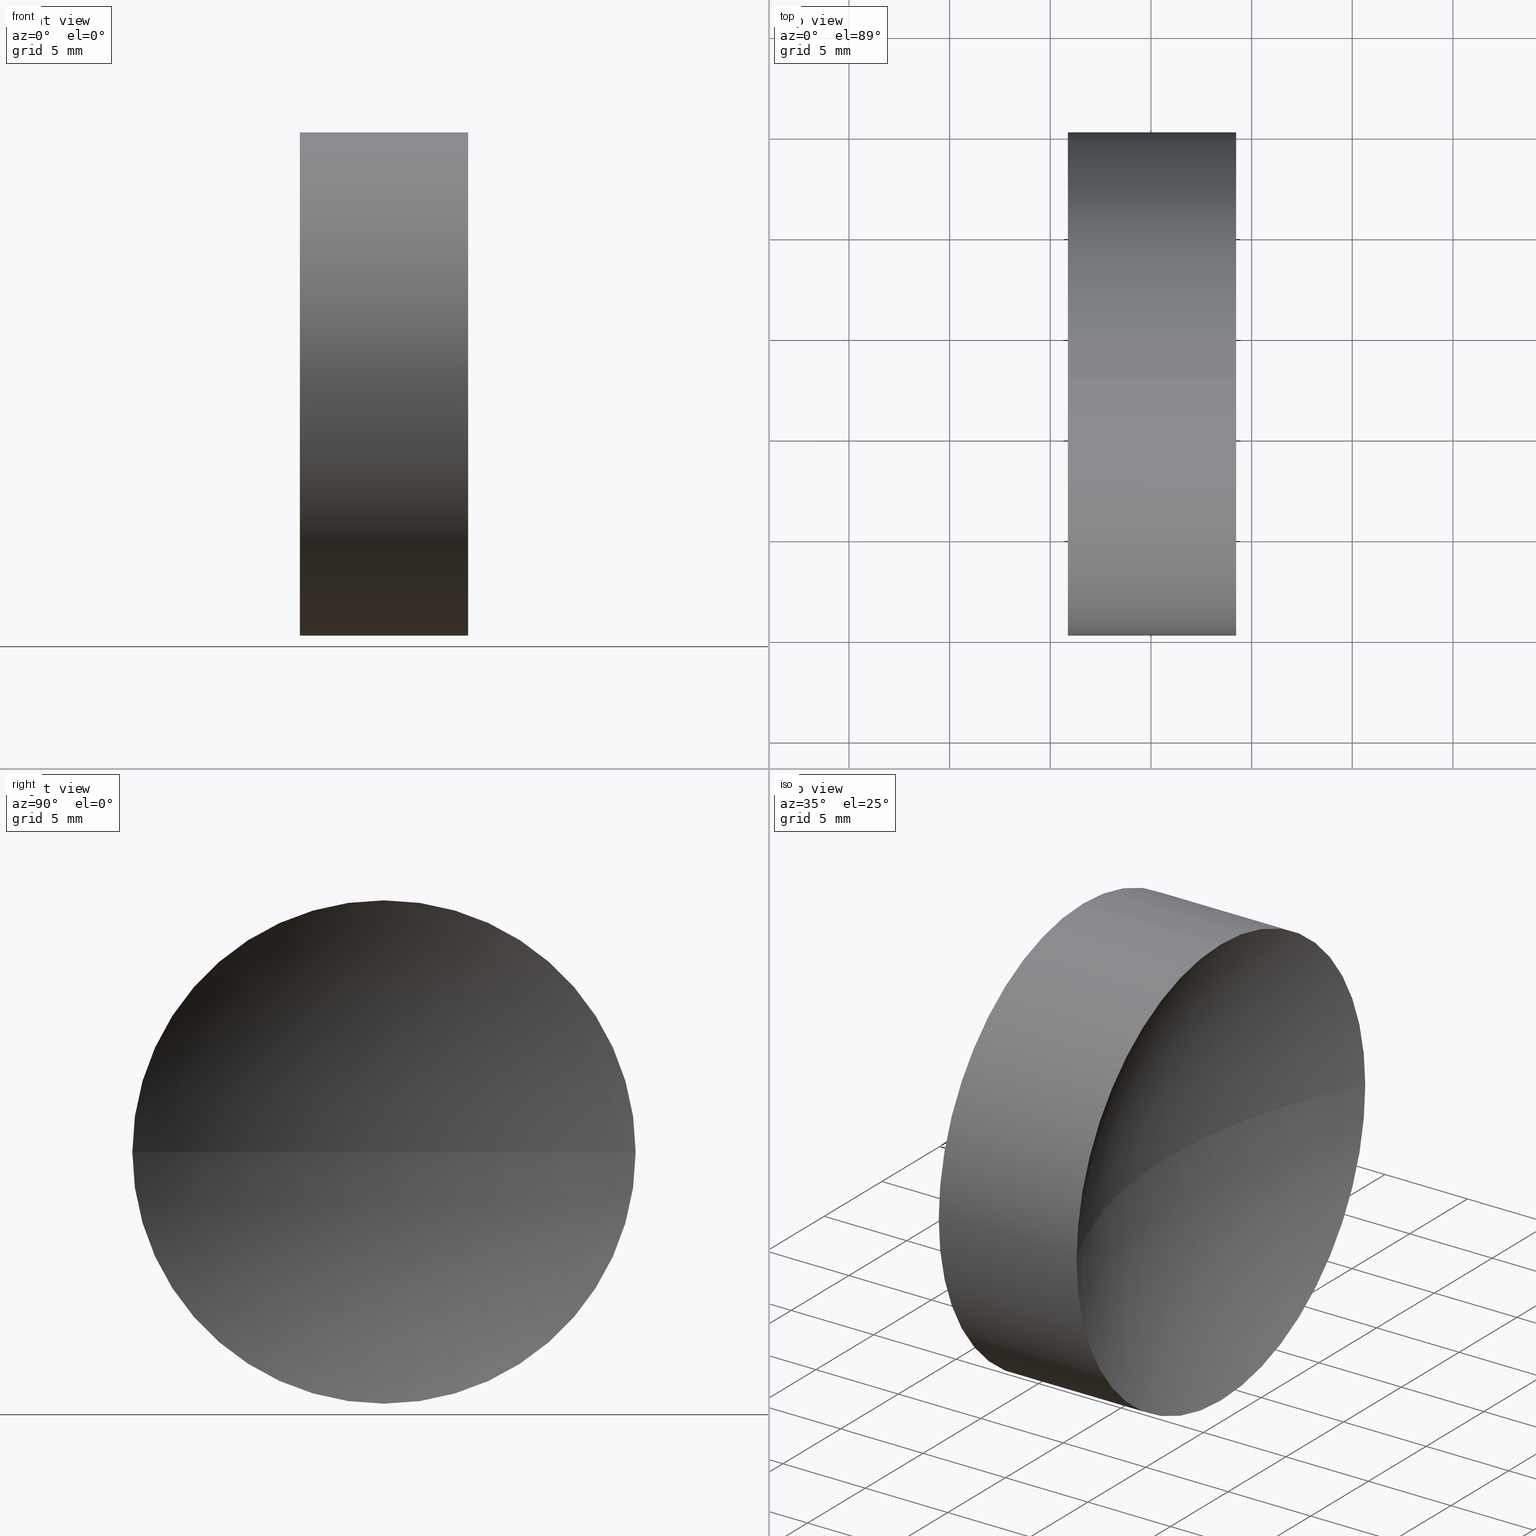
[diagram: canonical four-view strip — front | top / right | iso, engineering-drawing reading convention]
A machine part, canonical four-view strip (front | top / right | iso — engineering-drawing reading convention). The complete STEP part file that produces these views, byte-faithful:
ISO-10303-21;
HEADER;
FILE_DESCRIPTION (( 'STEP AP214' ),
    '1' );
FILE_NAME ('130010.STEP',
    '2019-07-01T01:28:08',
    ( '' ),
    ( '' ),
    'SwSTEP 2.0',
    'SolidWorks 2016',
    '' );
FILE_SCHEMA (( 'AUTOMOTIVE_DESIGN' ));
ENDSEC;

DATA;
#1 = EDGE_CURVE ( 'NONE', #153, #143, #137, .T. ) ;
#2 = CARTESIAN_POINT ( 'NONE',  ( 64.23215453445439500, 20.11130143649370100, 0.0000000000000000000 ) ) ;
#3 =( GEOMETRIC_REPRESENTATION_CONTEXT ( 3 ) GLOBAL_UNCERTAINTY_ASSIGNED_CONTEXT ( ( #41 ) ) GLOBAL_UNIT_ASSIGNED_CONTEXT ( ( #70, #4, #22 ) ) REPRESENTATION_CONTEXT ( 'NONE', 'WORKASPACE' ) );
#4 =( NAMED_UNIT ( * ) PLANE_ANGLE_UNIT ( ) SI_UNIT ( $, .RADIAN. ) );
#5 = ORIENTED_EDGE ( 'NONE', *, *, #220, .F. ) ;
#6 = COLOUR_RGB ( '',1.000000000000000000, 1.000000000000000000, 1.000000000000000000 ) ;
#7 = APPLICATION_CONTEXT ( 'automotive_design' ) ;
#8 = UNCERTAINTY_MEASURE_WITH_UNIT (LENGTH_MEASURE( 1.000000000000000100E-005 ), #93, 'distance_accuracy_value', 'NONE');
#9 = EDGE_CURVE ( 'NONE', #110, #179, #200, .T. ) ;
#10 = ADVANCED_FACE ( 'NONE', ( #187 ), #148, .F. ) ;
#11 = CIRCLE ( 'NONE', #30, 26.16000000000000400 ) ;
#12 = DIRECTION ( 'NONE',  ( 0.0000000000000000000, 1.224646799147353200E-016, -1.000000000000000000 ) ) ;
#13 =( LENGTH_UNIT ( ) NAMED_UNIT ( * ) SI_UNIT ( .MILLI., .METRE. ) );
#14 = DIRECTION ( 'NONE',  ( -1.000000000000000000, -0.0000000000000000000, -0.0000000000000000000 ) ) ;
#15 = EDGE_LOOP ( 'NONE', ( #203, #218, #188, #25 ) ) ;
#16 = DIRECTION ( 'NONE',  ( 0.0000000000000000000, 0.0000000000000000000, -1.000000000000000000 ) ) ;
#17 = DIRECTION ( 'NONE',  ( 0.0000000000000000000, 0.0000000000000000000, -1.000000000000000000 ) ) ;
#18 = EDGE_CURVE ( 'NONE', #75, #143, #11, .T. ) ;
#19 = CLOSED_SHELL ( 'NONE', ( #160, #222, #101, #24, #158, #10 ) ) ;
#20 = DIRECTION ( 'NONE',  ( 0.0000000000000000000, 0.0000000000000000000, 1.000000000000000000 ) ) ;
#21 = FILL_AREA_STYLE_COLOUR ( '', #123 ) ;
#22 =( NAMED_UNIT ( * ) SI_UNIT ( $, .STERADIAN. ) SOLID_ANGLE_UNIT ( ) );
#23 = ORIENTED_EDGE ( 'NONE', *, *, #174, .F. ) ;
#24 = ADVANCED_FACE ( 'NONE', ( #106 ), #180, .F. ) ;
#25 = ORIENTED_EDGE ( 'NONE', *, *, #114, .T. ) ;
#26 = CIRCLE ( 'NONE', #113, 12.49999999999999600 ) ;
#27 = DIRECTION ( 'NONE',  ( 0.0000000000000000000, 0.0000000000000000000, 1.000000000000000000 ) ) ;
#28 = CARTESIAN_POINT ( 'NONE',  ( 64.23215453445439500, 32.61130143649369700, 12.49999999999999600 ) ) ;
#29 = DIRECTION ( 'NONE',  ( 0.0000000000000000000, 0.0000000000000000000, 1.000000000000000000 ) ) ;
#30 = AXIS2_PLACEMENT_3D ( 'NONE', #172, #53, #77 ) ;
#31 = ORIENTED_EDGE ( 'NONE', *, *, #9, .T. ) ;
#32 =( GEOMETRIC_REPRESENTATION_CONTEXT ( 3 ) GLOBAL_UNCERTAINTY_ASSIGNED_CONTEXT ( ( #8 ) ) GLOBAL_UNIT_ASSIGNED_CONTEXT ( ( #93, #201, #127 ) ) REPRESENTATION_CONTEXT ( 'NONE', 'WORKASPACE' ) );
#33 = CARTESIAN_POINT ( 'NONE',  ( 87.21248525444187300, 32.61130143649369700, 0.0000000000000000000 ) ) ;
#34 = EDGE_LOOP ( 'NONE', ( #182, #98, #5, #79, #128, #52 ) ) ;
#35 = MANIFOLD_SOLID_BREP ( '��ת1', #19 ) ;
#36 = VECTOR ( 'NONE', #54, 1000.000000000000000 ) ;
#37 = ORIENTED_EDGE ( 'NONE', *, *, #18, .T. ) ;
#38 = CARTESIAN_POINT ( 'NONE',  ( 55.87281597442936500, 32.61130143649369700, 0.0000000000000000000 ) ) ;
#39 = ORIENTED_EDGE ( 'NONE', *, *, #1, .F. ) ;
#40 = PRODUCT_CONTEXT ( 'NONE', #91, 'mechanical' ) ;
#41 = UNCERTAINTY_MEASURE_WITH_UNIT (LENGTH_MEASURE( 1.000000000000000100E-005 ), #70, 'distance_accuracy_value', 'NONE');
#42 = FACE_OUTER_BOUND ( 'NONE', #15, .T. ) ;
#43 = EDGE_LOOP ( 'NONE', ( #73, #59, #210, #31 ) ) ;
#44 = AXIS2_PLACEMENT_3D ( 'NONE', #223, #45, #100 ) ;
#45 = DIRECTION ( 'NONE',  ( -1.000000000000000000, -0.0000000000000000000, -0.0000000000000000000 ) ) ;
#46 = CIRCLE ( 'NONE', #125, 26.15999999999999700 ) ;
#47 = DIRECTION ( 'NONE',  ( 0.0000000000000000000, -1.000000000000000000, 0.0000000000000000000 ) ) ;
#48 = CARTESIAN_POINT ( 'NONE',  ( 53.06232639267102500, 32.61130143649369700, -12.49999999999999600 ) ) ;
#49 = SURFACE_STYLE_FILL_AREA ( #183 ) ;
#50 = DIRECTION ( 'NONE',  ( 0.0000000000000000000, -1.000000000000000000, 0.0000000000000000000 ) ) ;
#51 = PRESENTATION_LAYER_ASSIGNMENT (  '', '', ( #193 ) ) ;
#52 = ORIENTED_EDGE ( 'NONE', *, *, #64, .T. ) ;
#53 = DIRECTION ( 'NONE',  ( 0.0000000000000000000, -1.224646799147353200E-016, 1.000000000000000000 ) ) ;
#54 = DIRECTION ( 'NONE',  ( -1.000000000000000000, -0.0000000000000000000, -0.0000000000000000000 ) ) ;
#55 = AXIS2_PLACEMENT_3D ( 'NONE', #206, #12, #186 ) ;
#56 = APPLICATION_PROTOCOL_DEFINITION ( 'draft international standard', 'automotive_design', 1998, #7 ) ;
#57 = CIRCLE ( 'NONE', #202, 12.49999999999999600 ) ;
#58 = PRODUCT_RELATED_PRODUCT_CATEGORY ( 'part', '', ( #94 ) ) ;
#59 = ORIENTED_EDGE ( 'NONE', *, *, #118, .T. ) ;
#60 = DIRECTION ( 'NONE',  ( 0.0000000000000000000, 0.0000000000000000000, 1.000000000000000000 ) ) ;
#61 = SURFACE_SIDE_STYLE ('',( #138 ) ) ;
#62 = DIRECTION ( 'NONE',  ( -1.000000000000000000, -0.0000000000000000000, -0.0000000000000000000 ) ) ;
#63 = DIRECTION ( 'NONE',  ( 0.0000000000000000000, 0.0000000000000000000, 1.000000000000000000 ) ) ;
#64 = EDGE_CURVE ( 'NONE', #122, #75, #57, .T. ) ;
#65 = ORIENTED_EDGE ( 'NONE', *, *, #18, .F. ) ;
#66 = SHAPE_DEFINITION_REPRESENTATION ( #116, #135 ) ;
#67 = AXIS2_PLACEMENT_3D ( 'NONE', #196, #108, #176 ) ;
#68 = ORIENTED_EDGE ( 'NONE', *, *, #82, .T. ) ;
#69 = DIRECTION ( 'NONE',  ( 0.0000000000000000000, 0.0000000000000000000, -1.000000000000000000 ) ) ;
#70 =( LENGTH_UNIT ( ) NAMED_UNIT ( * ) SI_UNIT ( .MILLI., .METRE. ) );
#71 = DIRECTION ( 'NONE',  ( 0.0000000000000000000, 0.0000000000000000000, 1.000000000000000000 ) ) ;
#72 = SURFACE_STYLE_USAGE ( .BOTH. , #112 ) ;
#73 = ORIENTED_EDGE ( 'NONE', *, *, #213, .F. ) ;
#74 = FACE_OUTER_BOUND ( 'NONE', #34, .T. ) ;
#75 = VERTEX_POINT ( 'NONE', #190 ) ;
#76 = AXIS2_PLACEMENT_3D ( 'NONE', #99, #227, #47 ) ;
#77 = DIRECTION ( 'NONE',  ( 0.0000000000000000000, -1.000000000000000000, -1.224646799147353200E-016 ) ) ;
#78 = CARTESIAN_POINT ( 'NONE',  ( 55.87281597442936500, 45.11130143649369700, 0.0000000000000000000 ) ) ;
#79 = ORIENTED_EDGE ( 'NONE', *, *, #114, .F. ) ;
#80 = CIRCLE ( 'NONE', #168, 12.49999999999999600 ) ;
#81 = FILL_AREA_STYLE ('',( #189 ) ) ;
#82 = EDGE_CURVE ( 'NONE', #153, #122, #194, .T. ) ;
#83 = DIRECTION ( 'NONE',  ( 1.000000000000000000, 0.0000000000000000000, 0.0000000000000000000 ) ) ;
#84 = CARTESIAN_POINT ( 'NONE',  ( 87.21248525444187300, 32.61130143649369700, 0.0000000000000000000 ) ) ;
#85 = ORIENTED_EDGE ( 'NONE', *, *, #173, .F. ) ;
#86 = CIRCLE ( 'NONE', #151, 12.49999999999999600 ) ;
#87 = ORIENTED_EDGE ( 'NONE', *, *, #82, .F. ) ;
#88 = CARTESIAN_POINT ( 'NONE',  ( 64.23215453445439500, 32.61130143649369700, -12.49999999999999600 ) ) ;
#89 =( GEOMETRIC_REPRESENTATION_CONTEXT ( 3 ) GLOBAL_UNCERTAINTY_ASSIGNED_CONTEXT ( ( #104 ) ) GLOBAL_UNIT_ASSIGNED_CONTEXT ( ( #13, #102, #228 ) ) REPRESENTATION_CONTEXT ( 'NONE', 'WORKASPACE' ) );
#90 = CARTESIAN_POINT ( 'NONE',  ( 55.87281597442936500, 32.61130143649369700, 12.49999999999999600 ) ) ;
#91 = APPLICATION_CONTEXT ( 'automotive_design' ) ;
#92 = EDGE_LOOP ( 'NONE', ( #65, #169, #87, #155 ) ) ;
#93 =( LENGTH_UNIT ( ) NAMED_UNIT ( * ) SI_UNIT ( .MILLI., .METRE. ) );
#94 = PRODUCT ( '130010', '130010', '', ( #40 ) ) ;
#95 = STYLED_ITEM ( 'NONE', ( #145 ), #35 ) ;
#96 = LINE ( 'NONE', #126, #184 ) ;
#97 = PRODUCT_DEFINITION_FORMATION_WITH_SPECIFIED_SOURCE ( '�κ�', '', #94, .NOT_KNOWN. ) ;
#98 = ORIENTED_EDGE ( 'NONE', *, *, #147, .T. ) ;
#99 = CARTESIAN_POINT ( 'NONE',  ( 87.21248525444187300, 32.61130143649369700, 0.0000000000000000000 ) ) ;
#100 = DIRECTION ( 'NONE',  ( 0.0000000000000000000, 0.0000000000000000000, 1.000000000000000000 ) ) ;
#101 = ADVANCED_FACE ( 'NONE', ( #231 ), #232, .F. ) ;
#102 =( NAMED_UNIT ( * ) PLANE_ANGLE_UNIT ( ) SI_UNIT ( $, .RADIAN. ) );
#103 = CARTESIAN_POINT ( 'NONE',  ( 55.87281597442936500, 32.61130143649369700, 0.0000000000000000000 ) ) ;
#104 = UNCERTAINTY_MEASURE_WITH_UNIT (LENGTH_MEASURE( 1.000000000000000100E-005 ), #13, 'distance_accuracy_value', 'NONE');
#105 = AXIS2_PLACEMENT_3D ( 'NONE', #139, #16, #205 ) ;
#106 = FACE_OUTER_BOUND ( 'NONE', #92, .T. ) ;
#107 = AXIS2_PLACEMENT_3D ( 'NONE', #33, #17, #195 ) ;
#108 = DIRECTION ( 'NONE',  ( -1.000000000000000000, -0.0000000000000000000, -0.0000000000000000000 ) ) ;
#109 = AXIS2_PLACEMENT_3D ( 'NONE', #177, #157, #178 ) ;
#110 = VERTEX_POINT ( 'NONE', #209 ) ;
#111 = CARTESIAN_POINT ( 'NONE',  ( 59.05248525444187600, 32.61130143649370400, 0.0000000000000000000 ) ) ;
#112 = SURFACE_SIDE_STYLE ('',( #49 ) ) ;
#113 = AXIS2_PLACEMENT_3D ( 'NONE', #103, #14, #63 ) ;
#114 = EDGE_CURVE ( 'NONE', #159, #214, #26, .T. ) ;
#115 = ORIENTED_EDGE ( 'NONE', *, *, #192, .T. ) ;
#116 = PRODUCT_DEFINITION_SHAPE ( 'NONE', 'NONE',  #142 ) ;
#117 = CARTESIAN_POINT ( 'NONE',  ( 32.89248525444188000, 32.61130143649370400, 0.0000000000000000000 ) ) ;
#118 = EDGE_CURVE ( 'NONE', #224, #214, #46, .T. ) ;
#119 = EDGE_LOOP ( 'NONE', ( #167, #115, #68, #120, #85, #221 ) ) ;
#120 = ORIENTED_EDGE ( 'NONE', *, *, #230, .T. ) ;
#121 = FACE_OUTER_BOUND ( 'NONE', #119, .T. ) ;
#122 = VERTEX_POINT ( 'NONE', #28 ) ;
#123 = COLOUR_RGB ( '',1.000000000000000000, 1.000000000000000000, 1.000000000000000000 ) ;
#124 = PRODUCT_DEFINITION_CONTEXT ( 'detailed design', #7, 'design' ) ;
#125 = AXIS2_PLACEMENT_3D ( 'NONE', #117, #27, #83 ) ;
#126 = CARTESIAN_POINT ( 'NONE',  ( 53.06232639267102500, 32.61130143649369700, 12.49999999999999600 ) ) ;
#127 =( NAMED_UNIT ( * ) SI_UNIT ( $, .STERADIAN. ) SOLID_ANGLE_UNIT ( ) );
#128 = ORIENTED_EDGE ( 'NONE', *, *, #230, .F. ) ;
#129 = AXIS2_PLACEMENT_3D ( 'NONE', #84, #152, #50 ) ;
#130 = CARTESIAN_POINT ( 'NONE',  ( 64.23215453445439500, 32.61130143649369700, 0.0000000000000000000 ) ) ;
#131 = DIRECTION ( 'NONE',  ( -1.000000000000000000, -0.0000000000000000000, -0.0000000000000000000 ) ) ;
#132 = ORIENTED_EDGE ( 'NONE', *, *, #192, .F. ) ;
#133 = CYLINDRICAL_SURFACE ( 'NONE', #67, 12.49999999999999600 ) ;
#134 = CARTESIAN_POINT ( 'NONE',  ( 64.23215453445439500, 32.61130143649369700, 0.0000000000000000000 ) ) ;
#135 = ADVANCED_BREP_SHAPE_REPRESENTATION ( '130010', ( #35, #154 ), #3 ) ;
#136 = AXIS2_PLACEMENT_3D ( 'NONE', #141, #150, #216 ) ;
#137 = CIRCLE ( 'NONE', #107, 26.16000000000000400 ) ;
#138 = SURFACE_STYLE_FILL_AREA ( #81 ) ;
#139 = CARTESIAN_POINT ( 'NONE',  ( 32.89248525444188000, 32.61130143649370400, 0.0000000000000000000 ) ) ;
#140 = AXIS2_PLACEMENT_3D ( 'NONE', #175, #69, #198 ) ;
#141 = CARTESIAN_POINT ( 'NONE',  ( 55.87281597442936500, 32.61130143649369700, 0.0000000000000000000 ) ) ;
#142 = PRODUCT_DEFINITION ( 'δ֪', '', #97, #124 ) ;
#143 = VERTEX_POINT ( 'NONE', #166 ) ;
#144 = DIRECTION ( 'NONE',  ( 1.000000000000000000, 0.0000000000000000000, 0.0000000000000000000 ) ) ;
#145 = PRESENTATION_STYLE_ASSIGNMENT (( #207 ) ) ;
#146 = DIRECTION ( 'NONE',  ( -1.000000000000000000, -0.0000000000000000000, -0.0000000000000000000 ) ) ;
#147 = EDGE_CURVE ( 'NONE', #162, #110, #163, .T. ) ;
#148 = SPHERICAL_SURFACE ( 'NONE', #105, 26.15999999999999700 ) ;
#149 = CARTESIAN_POINT ( 'NONE',  ( 55.87281597442936500, 20.11130143649371100, -1.530808498934190300E-015 ) ) ;
#150 = DIRECTION ( 'NONE',  ( -1.000000000000000000, -0.0000000000000000000, -0.0000000000000000000 ) ) ;
#151 = AXIS2_PLACEMENT_3D ( 'NONE', #38, #164, #20 ) ;
#152 = DIRECTION ( 'NONE',  ( 0.0000000000000000000, 0.0000000000000000000, 1.000000000000000000 ) ) ;
#153 = VERTEX_POINT ( 'NONE', #2 ) ;
#154 = AXIS2_PLACEMENT_3D ( 'NONE', #215, #71, #144 ) ;
#155 = ORIENTED_EDGE ( 'NONE', *, *, #1, .T. ) ;
#156 = AXIS2_PLACEMENT_3D ( 'NONE', #170, #131, #225 ) ;
#157 = DIRECTION ( 'NONE',  ( -1.000000000000000000, -0.0000000000000000000, -0.0000000000000000000 ) ) ;
#158 = ADVANCED_FACE ( 'NONE', ( #121 ), #133, .T. ) ;
#159 = VERTEX_POINT ( 'NONE', #90 ) ;
#160 = ADVANCED_FACE ( 'NONE', ( #42 ), #219, .F. ) ;
#161 = DIRECTION ( 'NONE',  ( -1.000000000000000000, -0.0000000000000000000, -0.0000000000000000000 ) ) ;
#162 = VERTEX_POINT ( 'NONE', #88 ) ;
#163 = LINE ( 'NONE', #48, #36 ) ;
#164 = DIRECTION ( 'NONE',  ( -1.000000000000000000, -0.0000000000000000000, -0.0000000000000000000 ) ) ;
#165 = CARTESIAN_POINT ( 'NONE',  ( 64.23215453445439500, 32.61130143649369700, 0.0000000000000000000 ) ) ;
#166 = CARTESIAN_POINT ( 'NONE',  ( 61.05248525444187600, 32.61130143649369700, 0.0000000000000000000 ) ) ;
#167 = ORIENTED_EDGE ( 'NONE', *, *, #147, .F. ) ;
#168 = AXIS2_PLACEMENT_3D ( 'NONE', #130, #161, #60 ) ;
#169 = ORIENTED_EDGE ( 'NONE', *, *, #64, .F. ) ;
#170 = CARTESIAN_POINT ( 'NONE',  ( 55.87281597442936500, 32.61130143649369700, 0.0000000000000000000 ) ) ;
#171 = CIRCLE ( 'NONE', #136, 12.49999999999999600 ) ;
#172 = CARTESIAN_POINT ( 'NONE',  ( 87.21248525444187300, 32.61130143649369700, 0.0000000000000000000 ) ) ;
#173 = EDGE_CURVE ( 'NONE', #179, #159, #171, .T. ) ;
#174 = EDGE_CURVE ( 'NONE', #75, #162, #211, .T. ) ;
#175 = CARTESIAN_POINT ( 'NONE',  ( 32.89248525444188000, 32.61130143649370400, 0.0000000000000000000 ) ) ;
#176 = DIRECTION ( 'NONE',  ( 0.0000000000000000000, 0.0000000000000000000, 1.000000000000000000 ) ) ;
#177 = CARTESIAN_POINT ( 'NONE',  ( 53.06232639267102500, 32.61130143649369700, 0.0000000000000000000 ) ) ;
#178 = DIRECTION ( 'NONE',  ( 0.0000000000000000000, 0.0000000000000000000, 1.000000000000000000 ) ) ;
#179 = VERTEX_POINT ( 'NONE', #149 ) ;
#180 = SPHERICAL_SURFACE ( 'NONE', #76, 26.16000000000000400 ) ;
#181 = PRESENTATION_STYLE_ASSIGNMENT (( #72 ) ) ;
#182 = ORIENTED_EDGE ( 'NONE', *, *, #174, .T. ) ;
#183 = FILL_AREA_STYLE ('',( #21 ) ) ;
#184 = VECTOR ( 'NONE', #146, 1000.000000000000000 ) ;
#185 = PRESENTATION_LAYER_ASSIGNMENT (  '', '', ( #95 ) ) ;
#186 = DIRECTION ( 'NONE',  ( 0.0000000000000000000, 1.000000000000000000, 1.224646799147353200E-016 ) ) ;
#187 = FACE_OUTER_BOUND ( 'NONE', #43, .T. ) ;
#188 = ORIENTED_EDGE ( 'NONE', *, *, #173, .T. ) ;
#189 = FILL_AREA_STYLE_COLOUR ( '', #6 ) ;
#190 = CARTESIAN_POINT ( 'NONE',  ( 64.23215453445439500, 45.11130143649369700, 1.530808498934191100E-015 ) ) ;
#191 = DIRECTION ( 'NONE',  ( -1.000000000000000000, -0.0000000000000000000, -0.0000000000000000000 ) ) ;
#192 = EDGE_CURVE ( 'NONE', #162, #153, #80, .T. ) ;
#193 = STYLED_ITEM ( 'NONE', ( #181 ), #135 ) ;
#194 = CIRCLE ( 'NONE', #212, 12.49999999999999600 ) ;
#195 = DIRECTION ( 'NONE',  ( -1.000000000000000000, 0.0000000000000000000, 0.0000000000000000000 ) ) ;
#196 = CARTESIAN_POINT ( 'NONE',  ( 53.06232639267102500, 32.61130143649369700, 0.0000000000000000000 ) ) ;
#197 = MECHANICAL_DESIGN_GEOMETRIC_PRESENTATION_REPRESENTATION (  '', ( #193 ), #32 ) ;
#198 = DIRECTION ( 'NONE',  ( 0.0000000000000000000, 1.000000000000000000, 0.0000000000000000000 ) ) ;
#199 = MECHANICAL_DESIGN_GEOMETRIC_PRESENTATION_REPRESENTATION (  '', ( #95 ), #89 ) ;
#200 = CIRCLE ( 'NONE', #156, 12.49999999999999600 ) ;
#201 =( NAMED_UNIT ( * ) PLANE_ANGLE_UNIT ( ) SI_UNIT ( $, .RADIAN. ) );
#202 = AXIS2_PLACEMENT_3D ( 'NONE', #165, #62, #208 ) ;
#203 = ORIENTED_EDGE ( 'NONE', *, *, #118, .F. ) ;
#204 = EDGE_LOOP ( 'NONE', ( #23, #37, #39, #132 ) ) ;
#205 = DIRECTION ( 'NONE',  ( 0.0000000000000000000, 1.000000000000000000, 0.0000000000000000000 ) ) ;
#206 = CARTESIAN_POINT ( 'NONE',  ( 32.89248525444188000, 32.61130143649370400, 0.0000000000000000000 ) ) ;
#207 = SURFACE_STYLE_USAGE ( .BOTH. , #61 ) ;
#208 = DIRECTION ( 'NONE',  ( 0.0000000000000000000, 0.0000000000000000000, 1.000000000000000000 ) ) ;
#209 = CARTESIAN_POINT ( 'NONE',  ( 55.87281597442936500, 32.61130143649369700, -12.49999999999999600 ) ) ;
#210 = ORIENTED_EDGE ( 'NONE', *, *, #220, .T. ) ;
#211 = CIRCLE ( 'NONE', #44, 12.49999999999999600 ) ;
#212 = AXIS2_PLACEMENT_3D ( 'NONE', #134, #191, #29 ) ;
#213 = EDGE_CURVE ( 'NONE', #224, #179, #226, .T. ) ;
#214 = VERTEX_POINT ( 'NONE', #78 ) ;
#215 = CARTESIAN_POINT ( 'NONE',  ( 0.0000000000000000000, 0.0000000000000000000, 0.0000000000000000000 ) ) ;
#216 = DIRECTION ( 'NONE',  ( 0.0000000000000000000, 0.0000000000000000000, 1.000000000000000000 ) ) ;
#217 = APPLICATION_PROTOCOL_DEFINITION ( 'draft international standard', 'automotive_design', 1998, #91 ) ;
#218 = ORIENTED_EDGE ( 'NONE', *, *, #213, .T. ) ;
#219 = SPHERICAL_SURFACE ( 'NONE', #140, 26.15999999999999700 ) ;
#220 = EDGE_CURVE ( 'NONE', #214, #110, #86, .T. ) ;
#221 = ORIENTED_EDGE ( 'NONE', *, *, #9, .F. ) ;
#222 = ADVANCED_FACE ( 'NONE', ( #74 ), #229, .T. ) ;
#223 = CARTESIAN_POINT ( 'NONE',  ( 64.23215453445439500, 32.61130143649369700, 0.0000000000000000000 ) ) ;
#224 = VERTEX_POINT ( 'NONE', #111 ) ;
#225 = DIRECTION ( 'NONE',  ( 0.0000000000000000000, 0.0000000000000000000, 1.000000000000000000 ) ) ;
#226 = CIRCLE ( 'NONE', #55, 26.15999999999999700 ) ;
#227 = DIRECTION ( 'NONE',  ( 0.0000000000000000000, 0.0000000000000000000, 1.000000000000000000 ) ) ;
#228 =( NAMED_UNIT ( * ) SI_UNIT ( $, .STERADIAN. ) SOLID_ANGLE_UNIT ( ) );
#229 = CYLINDRICAL_SURFACE ( 'NONE', #109, 12.49999999999999600 ) ;
#230 = EDGE_CURVE ( 'NONE', #122, #159, #96, .T. ) ;
#231 = FACE_OUTER_BOUND ( 'NONE', #204, .T. ) ;
#232 = SPHERICAL_SURFACE ( 'NONE', #129, 26.16000000000000400 ) ;
ENDSEC;
END-ISO-10303-21;
